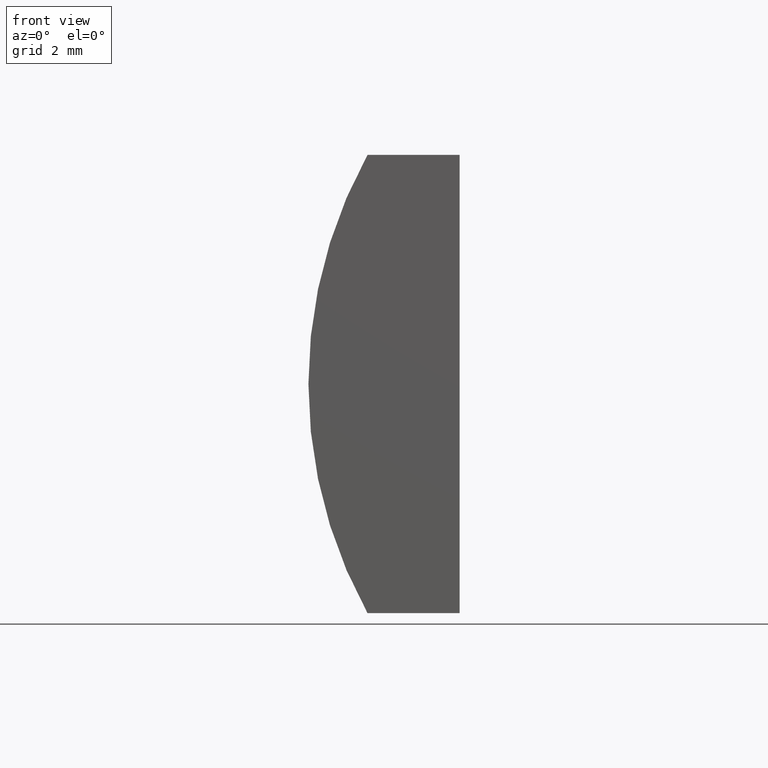
[diagram: clean part render]
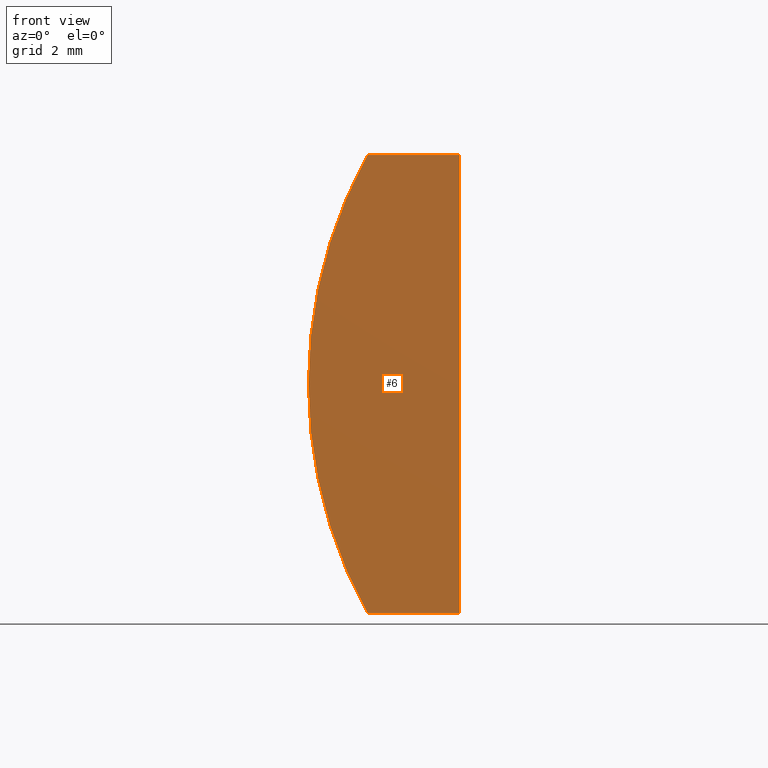
[diagram: same view with one face highlighted and labeled with its STEP entity id]
A machine part, front view. The second image highlights one B-rep face of the part: STEP entity #6.
In plain terms, the highlighted planar face has unit normal (0, 1, 0).
Its self-contained STEP definition (entity closure, byte-faithful):
#2 = CARTESIAN_POINT ( 'NONE',  ( -4.695519393116569500, 0.0000000000000000000, -5.000000000000000000 ) ) ;
#6 = ADVANCED_FACE ( 'NONE', ( #198 ), #36, .F. ) ;
#13 = DIRECTION ( 'NONE',  ( 1.000000000000000000, 0.0000000000000000000, 0.0000000000000000000 ) ) ;
#15 = VECTOR ( 'NONE', #72, 1000.000000000000000 ) ;
#22 = VERTEX_POINT ( 'NONE', #2 ) ;
#34 = VECTOR ( 'NONE', #186, 1000.000000000000000 ) ;
#36 = PLANE ( 'NONE',  #155 ) ;
#41 = LINE ( 'NONE', #93, #100 ) ;
#49 = CIRCLE ( 'NONE', #128, 10.34000000000000000 ) ;
#52 = LINE ( 'NONE', #170, #34 ) ;
#57 = DIRECTION ( 'NONE',  ( 0.0000000000000000000, 1.000000000000000000, 0.0000000000000000000 ) ) ;
#59 = EDGE_CURVE ( 'NONE', #99, #111, #41, .T. ) ;
#72 = DIRECTION ( 'NONE',  ( -1.000000000000000000, -0.0000000000000000000, 8.627358656228873800E-016 ) ) ;
#73 = ORIENTED_EDGE ( 'NONE', *, *, #152, .F. ) ;
#74 = CARTESIAN_POINT ( 'NONE',  ( -4.695519393116569500, 0.0000000000000000000, 5.000000000000000000 ) ) ;
#87 = CARTESIAN_POINT ( 'NONE',  ( -4.695519393116569500, 0.0000000000000000000, -5.000000000000000000 ) ) ;
#90 = EDGE_LOOP ( 'NONE', ( #114, #73, #157, #98 ) ) ;
#93 = CARTESIAN_POINT ( 'NONE',  ( -4.695519393116569500, 0.0000000000000000000, 5.000000000000000000 ) ) ;
#98 = ORIENTED_EDGE ( 'NONE', *, *, #59, .F. ) ;
#99 = VERTEX_POINT ( 'NONE', #74 ) ;
#100 = VECTOR ( 'NONE', #13, 1000.000000000000000 ) ;
#101 = DIRECTION ( 'NONE',  ( 0.0000000000000000000, 1.000000000000000000, 0.0000000000000000000 ) ) ;
#105 = CARTESIAN_POINT ( 'NONE',  ( -2.684795665148733700, 0.0000000000000000000, 5.000000000000000000 ) ) ;
#111 = VERTEX_POINT ( 'NONE', #105 ) ;
#114 = ORIENTED_EDGE ( 'NONE', *, *, #148, .F. ) ;
#119 = VERTEX_POINT ( 'NONE', #130 ) ;
#125 = CARTESIAN_POINT ( 'NONE',  ( 4.355204334851265500, 0.0000000000000000000, 4.286263797015675000E-017 ) ) ;
#126 = LINE ( 'NONE', #87, #15 ) ;
#128 = AXIS2_PLACEMENT_3D ( 'NONE', #125, #101, #195 ) ;
#130 = CARTESIAN_POINT ( 'NONE',  ( -2.684795665148736800, 0.0000000000000000000, -5.000000000000001800 ) ) ;
#148 = EDGE_CURVE ( 'NONE', #22, #99, #49, .T. ) ;
#152 = EDGE_CURVE ( 'NONE', #119, #22, #126, .T. ) ;
#155 = AXIS2_PLACEMENT_3D ( 'NONE', #184, #57, #167 ) ;
#157 = ORIENTED_EDGE ( 'NONE', *, *, #187, .F. ) ;
#167 = DIRECTION ( 'NONE',  ( 0.0000000000000000000, -0.0000000000000000000, 1.000000000000000000 ) ) ;
#170 = CARTESIAN_POINT ( 'NONE',  ( -2.684795665148736800, 0.0000000000000000000, -5.000000000000001800 ) ) ;
#184 = CARTESIAN_POINT ( 'NONE',  ( 4.355204334851265500, 0.0000000000000000000, 4.286263797015675000E-017 ) ) ;
#186 = DIRECTION ( 'NONE',  ( -3.035766082959411900E-016, -0.0000000000000000000, -1.000000000000000000 ) ) ;
#187 = EDGE_CURVE ( 'NONE', #111, #119, #52, .T. ) ;
#195 = DIRECTION ( 'NONE',  ( 0.0000000000000000000, 0.0000000000000000000, 1.000000000000000000 ) ) ;
#198 = FACE_OUTER_BOUND ( 'NONE', #90, .T. ) ;